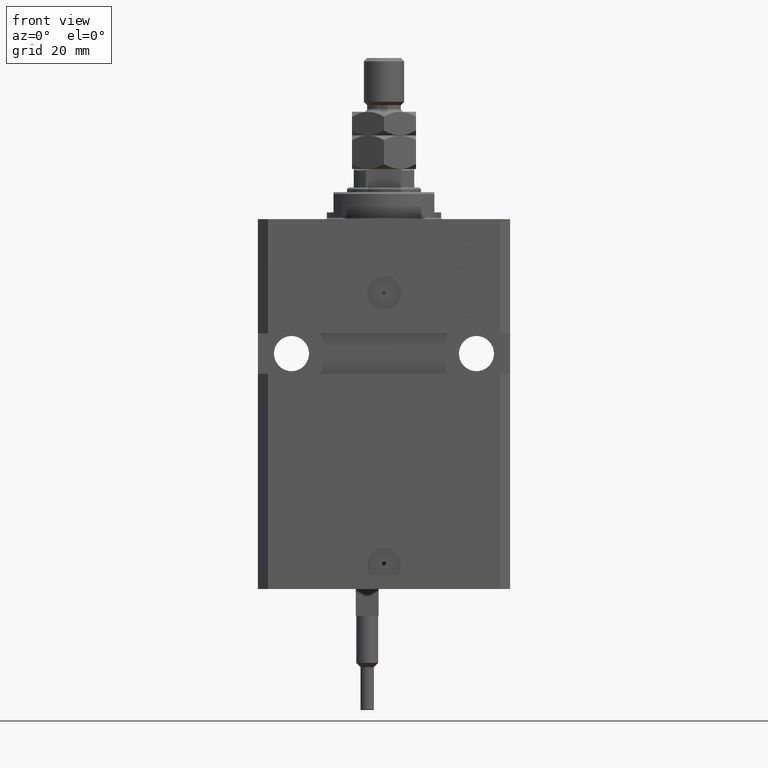
[diagram: clean part render]
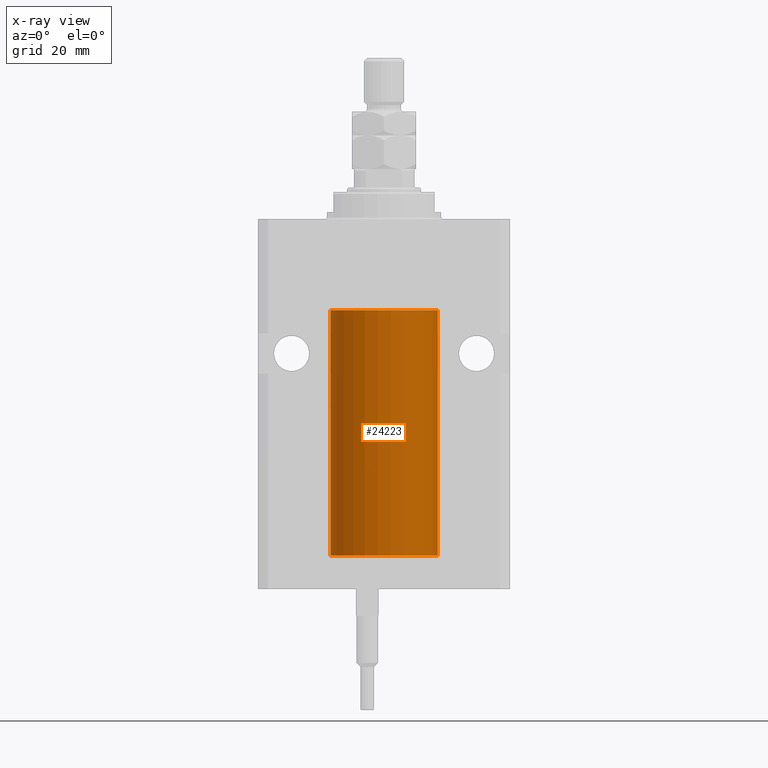
[diagram: x-ray — body ghosted, one internal face saturated and labeled with its STEP entity id]
A machine part, front view, then the same camera in x-ray: the body is ghosted and one INTERNAL B-rep face — a face not visible from any outside direction — is saturated and labeled: STEP entity #24223.
In plain terms, the highlighted cylindrical surface (partial cylindrical patch) has radius 16 mm, axis along (0, 0, 1).
Its self-contained STEP definition (entity closure, byte-faithful):
#538 = CARTESIAN_POINT ( 'NONE',  ( -15.98779367741636648, -0.6248626626677354912, -98.16539631985041581 ) ) ;
#788 = VERTEX_POINT ( 'NONE', #6682 ) ;
#2075 = EDGE_CURVE ( 'NONE', #788, #6924, #27995, .T. ) ;
#2447 = CARTESIAN_POINT ( 'NONE',  ( 16.00000000000000000, 0.000000000000000000, -100.0999999999999943 ) ) ;
#3995 = EDGE_CURVE ( 'NONE', #48108, #47437, #38509, .T. ) ;
#4973 = ORIENTED_EDGE ( 'NONE', *, *, #2075, .F. ) ;
#5394 = CARTESIAN_POINT ( 'NONE',  ( 16.00000000000000000, 0.000000000000000000, -100.0999999999999943 ) ) ;
#5793 = ORIENTED_EDGE ( 'NONE', *, *, #37816, .T. ) ;
#5831 = CARTESIAN_POINT ( 'NONE',  ( 0.000000000000000000, 0.000000000000000000, -27.10000000000000142 ) ) ;
#6300 = VERTEX_POINT ( 'NONE', #13264 ) ;
#6682 = CARTESIAN_POINT ( 'NONE',  ( -16.00000000000000000, 1.959434878635765131E-15, -100.0999999999999943 ) ) ;
#6924 = VERTEX_POINT ( 'NONE', #5394 ) ;
#7351 = LINE ( 'NONE', #2447, #18692 ) ;
#8250 = CARTESIAN_POINT ( 'NONE',  ( -16.00000000000000000, -0.1651602165840288794, -97.37500000000001421 ) ) ;
#8980 = CARTESIAN_POINT ( 'NONE',  ( -15.99708815688950381, -0.3263115027449080552, -98.55740969198227219 ) ) ;
#10924 = CIRCLE ( 'NONE', #48256, 16.00000000000000000 ) ;
#11009 = EDGE_CURVE ( 'NONE', #6924, #6300, #7351, .T. ) ;
#13264 = CARTESIAN_POINT ( 'NONE',  ( 16.00000000000000000, 0.000000000000000000, -27.10000000000000142 ) ) ;
#13427 = EDGE_LOOP ( 'NONE', ( #4973, #13684, #42558, #5793, #43701, #36323 ) ) ;
#13684 = ORIENTED_EDGE ( 'NONE', *, *, #17901, .T. ) ;
#15753 = CARTESIAN_POINT ( 'NONE',  ( -16.00000000000000000, 1.959434878635765131E-15, -27.10000000000000142 ) ) ;
#16037 = CARTESIAN_POINT ( 'NONE',  ( -16.00000000000000000, 1.959434878635765131E-15, -100.0999999999999943 ) ) ;
#16218 = DIRECTION ( 'NONE',  ( 1.000000000000000000, 0.000000000000000000, 0.000000000000000000 ) ) ;
#16276 = LINE ( 'NONE', #16037, #33102 ) ;
#17901 = EDGE_CURVE ( 'NONE', #788, #48108, #32074, .T. ) ;
#18692 = VECTOR ( 'NONE', #32788, 1000.000000000000000 ) ;
#19679 = CARTESIAN_POINT ( 'NONE',  ( -16.00000000000013145, 3.685127046438747128E-13, -98.62500000000343903 ) ) ;
#19710 = CARTESIAN_POINT ( 'NONE',  ( 0.000000000000000000, 0.000000000000000000, -100.0999999999999943 ) ) ;
#19956 = DIRECTION ( 'NONE',  ( -0.000000000000000000, -0.000000000000000000, 1.000000000000000000 ) ) ;
#20749 = DIRECTION ( 'NONE',  ( 0.000000000000000000, 0.000000000000000000, 1.000000000000000000 ) ) ;
#23413 = CARTESIAN_POINT ( 'NONE',  ( -16.00000000000000000, -1.303459030566954747E-14, -97.37500000000000000 ) ) ;
#23946 = CYLINDRICAL_SURFACE ( 'NONE', #38888, 16.00000000000000000 ) ;
#24223 = ADVANCED_FACE ( 'NONE', ( #34629 ), #23946, .F. ) ;
#24382 = CARTESIAN_POINT ( 'NONE',  ( -16.00000000000000000, 1.959434878635765131E-15, -100.0999999999999943 ) ) ;
#27182 = AXIS2_PLACEMENT_3D ( 'NONE', #41329, #37362, #33628 ) ;
#27875 = CARTESIAN_POINT ( 'NONE',  ( -16.00000000000000711, -0.1631344205875864539, -98.62500000000012790 ) ) ;
#27995 = CIRCLE ( 'NONE', #27182, 16.00000000000000000 ) ;
#30872 = CARTESIAN_POINT ( 'NONE',  ( -15.98778295664474491, -0.6251369050462269872, -97.83564325457868449 ) ) ;
#31207 = DIRECTION ( 'NONE',  ( -0.000000000000000000, -0.000000000000000000, 1.000000000000000000 ) ) ;
#32074 = LINE ( 'NONE', #24382, #45032 ) ;
#32788 = DIRECTION ( 'NONE',  ( -0.000000000000000000, -0.000000000000000000, 1.000000000000000000 ) ) ;
#33102 = VECTOR ( 'NONE', #31207, 1000.000000000000000 ) ;
#33628 = DIRECTION ( 'NONE',  ( 1.000000000000000000, 0.000000000000000000, 0.000000000000000000 ) ) ;
#34136 = VERTEX_POINT ( 'NONE', #15753 ) ;
#34597 = CARTESIAN_POINT ( 'NONE',  ( -15.99071965633095793, -0.5569502390237154321, -98.32709508218682970 ) ) ;
#34629 = FACE_OUTER_BOUND ( 'NONE', #13427, .T. ) ;
#35090 = CARTESIAN_POINT ( 'NONE',  ( -15.99707459521409625, -0.3269651631532106140, -97.44291848928558863 ) ) ;
#35919 = DIRECTION ( 'NONE',  ( 1.000000000000000000, 0.000000000000000000, 0.000000000000000000 ) ) ;
#36323 = ORIENTED_EDGE ( 'NONE', *, *, #11009, .F. ) ;
#36705 = CARTESIAN_POINT ( 'NONE',  ( -16.00000000000000000, -1.303459030566954747E-14, -97.37500000000000000 ) ) ;
#37362 = DIRECTION ( 'NONE',  ( 0.000000000000000000, 0.000000000000000000, 1.000000000000000000 ) ) ;
#37510 = CARTESIAN_POINT ( 'NONE',  ( -16.00000000000013145, 3.685127046438747128E-13, -98.62500000000343903 ) ) ;
#37816 = EDGE_CURVE ( 'NONE', #47437, #34136, #16276, .T. ) ;
#38509 = B_SPLINE_CURVE_WITH_KNOTS ( 'NONE', 3,
 ( #19679, #27875, #8980, #34597, #538, #30872, #46043, #35090, #8250, #23413 ),
 .UNSPECIFIED., .F., .F.,
 ( 4, 2, 2, 2, 4 ),
 ( 0.001954221322144760863, 0.002442665739568255709, 0.002931110156991750121, 0.003419554574415244966, 0.003907998991838739812 ),
 .UNSPECIFIED. ) ;
#38888 = AXIS2_PLACEMENT_3D ( 'NONE', #19710, #19956, #16218 ) ;
#39870 = EDGE_CURVE ( 'NONE', #34136, #6300, #10924, .T. ) ;
#41329 = CARTESIAN_POINT ( 'NONE',  ( 0.000000000000000000, 0.000000000000000000, -100.0999999999999943 ) ) ;
#42543 = DIRECTION ( 'NONE',  ( -0.000000000000000000, -0.000000000000000000, 1.000000000000000000 ) ) ;
#42558 = ORIENTED_EDGE ( 'NONE', *, *, #3995, .T. ) ;
#43701 = ORIENTED_EDGE ( 'NONE', *, *, #39870, .T. ) ;
#45032 = VECTOR ( 'NONE', #42543, 1000.000000000000000 ) ;
#46043 = CARTESIAN_POINT ( 'NONE',  ( -15.99069874693027948, -0.5575440858643423425, -97.67382425011452085 ) ) ;
#47437 = VERTEX_POINT ( 'NONE', #36705 ) ;
#48108 = VERTEX_POINT ( 'NONE', #37510 ) ;
#48256 = AXIS2_PLACEMENT_3D ( 'NONE', #5831, #20749, #35919 ) ;